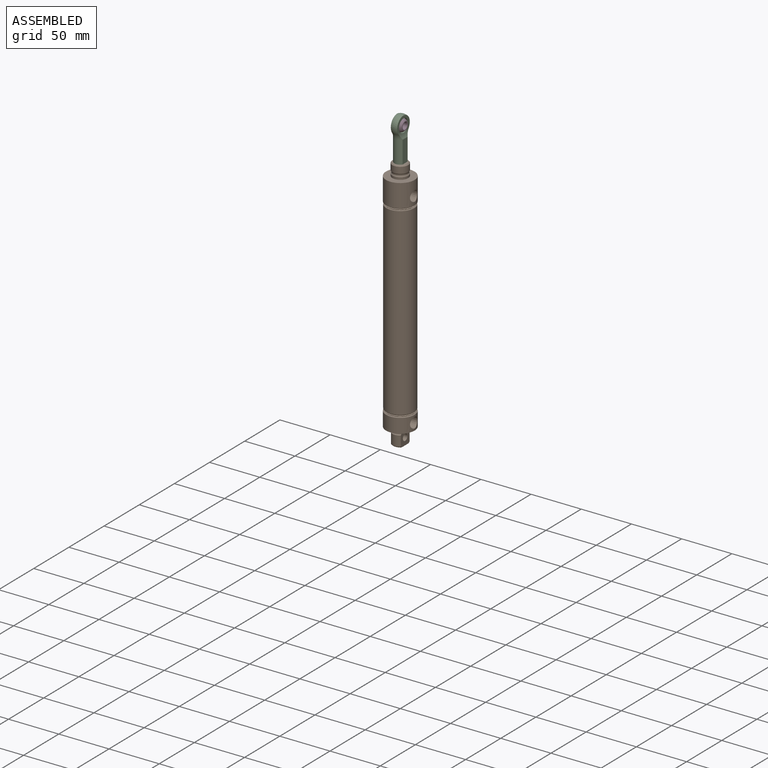
[diagram: assembled view]
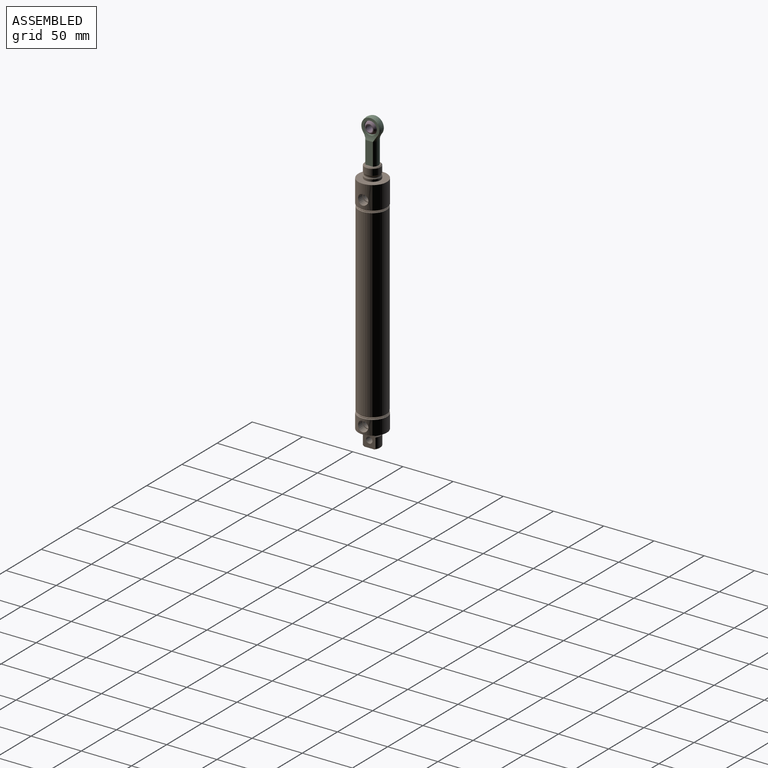
[diagram: assembled view, second angle]
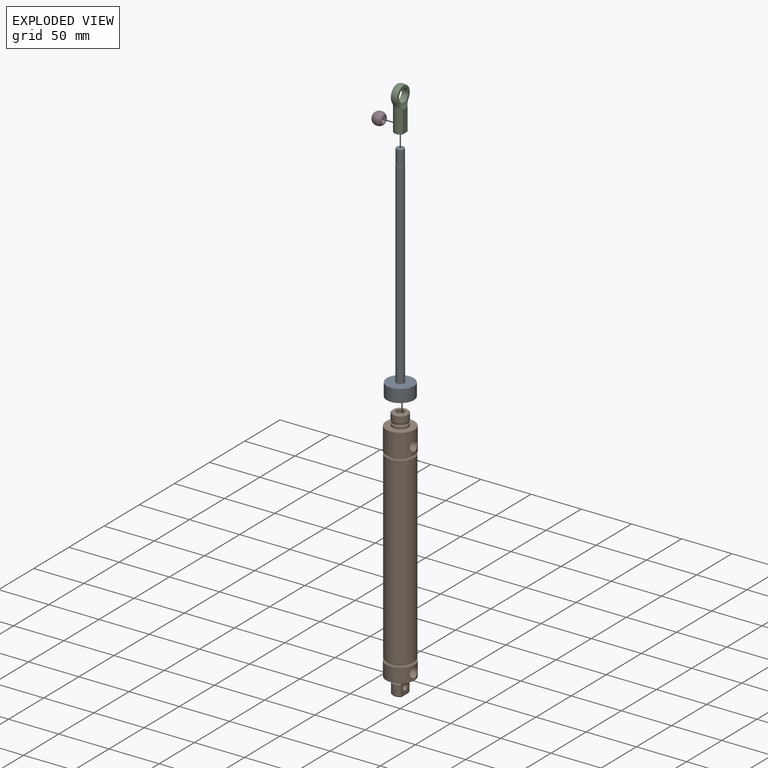
[diagram: exploded view]
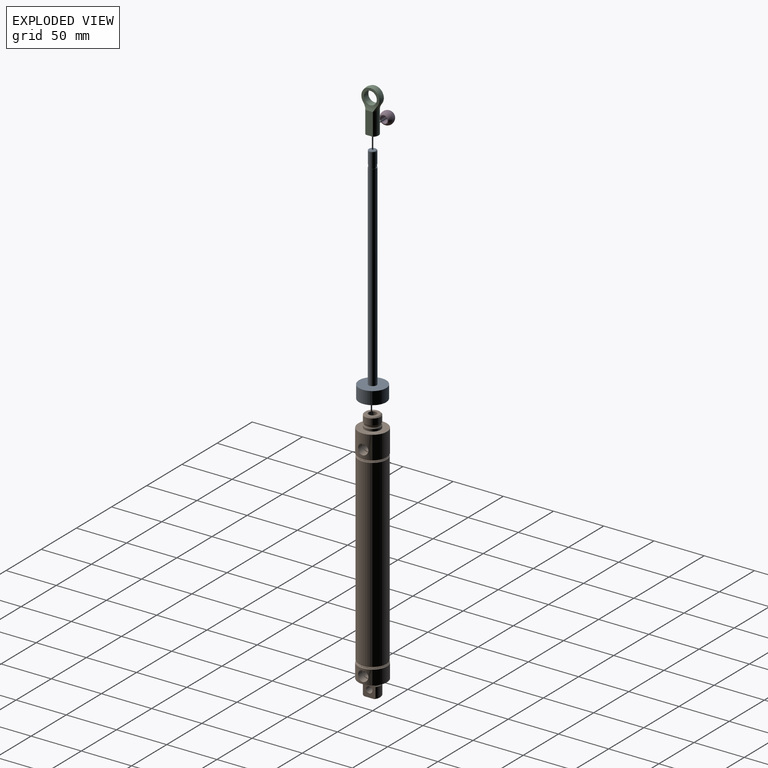
[diagram: exploded view, second angle]
ASSEMBLY  parts=4 mates=2
PART A: 12 faces, bbox 223.8x27x27 mm
  f0: cone r=3.33mm half-angle=45deg, axis (1,0,0), area 17.1mm2, adj f1,f7
  f1: cylinder r=3.86mm len=15.21mm, axis (1,0,0), area 340.7mm2, adj f0,f6,f8,f9,f10,f11
  f2: cylinder r=13.49mm len=26.99mm, axis (1,0,0), area 1076.8mm2, adj f4,f5
  f3: cylinder r=3.96mm len=195.33mm, axis (-1,0,0), area 4862.9mm2, adj f4,f6
  f4: plane 26.99x26.99mm, normal (-1,0,0), area 522.7mm2, adj f2,f3
  f5: plane 26.99x26.99mm, normal (1,0,0), area 572mm2, adj f2
  f6: plane 7.92x7.92mm, normal (-1,0,0), area 6.6mm2, adj f1,f3,f9,f11
  f7: plane 6.65x6.65mm, normal (-1,0,0), area 34.8mm2, adj f0
  f8: plane 4.15x1.6mm, normal (1,0,0), area 2.1mm2, adj f1,f9
  f9: plane 4.15x3.05mm, normal (0,0.94,-0.33), area 13.4mm2, adj f1,f6,f8
  f10: plane 4.15x1.6mm, normal (1,0,0), area 2.1mm2, adj f1,f11
  f11: plane 4.15x3.05mm, normal (0,-0.94,0.33), area 13.4mm2, adj f1,f6,f10
PART B: 45 faces, bbox 254.2x28.7x28.7 mm
  f0: torus R=8.47mm, axis (-1,0,0), area 29.4mm2, adj f1,f42,f43,f44
  f1: plane 15.97x12.83mm, normal (0,0,1), area 162.2mm2, adj f0,f2,f3,f4,f5,f38,f39,f40
  f2: cylinder r=3.17mm len=9.65mm, axis (0,0,1), area 192.5mm2, adj f1,f43
  f3: torus R=8.47mm, axis (-1,0,0), area 29.4mm2, adj f1,f4,f41,f43
  f4: cylinder r=7.91mm len=9.65mm, axis (-1,0,0), area 23.7mm2, adj f1,f3,f5,f43
  f5: plane 28.45x28.45mm, normal (1,0,0), area 493.1mm2, adj f1,f4,f6,f43,f44
  f6: cylinder r=14.22mm len=28.45mm, axis (-1,0,0), area 1187.1mm2, adj f5,f7,f11
  f7: cone r=5.14mm half-angle=1.7deg, axis (0,0,1), area 219.4mm2, adj f6,f8
  f8: plane 9.87x9.87mm, normal (0,0,1), area 20.7mm2, adj f7,f9
  f9: cylinder r=4.22mm len=8.43mm, axis (0,0,1), area 124.5mm2, adj f8,f10
  f10: cone r=4.22mm half-angle=59deg, axis (0,0,1), area 65.2mm2, adj f9
  f11: plane 28.45x28.45mm, normal (-1,0,0), area 22.5mm2, adj f6,f12
  f12: cone r=13.97mm half-angle=45deg, axis (1,0,0), area 81.5mm2, adj f11,f13
  f13: cone r=13.3mm half-angle=45deg, axis (-1,0,0), area 72.1mm2, adj f12,f14
  f14: cone r=13.89mm half-angle=45deg, axis (1,0,0), area 72.1mm2, adj f13,f15
  f15: cone r=13.3mm half-angle=45deg, axis (-1,0,0), area 81.5mm2, adj f14,f16
  f16: cylinder r=13.97mm len=183.39mm, axis (-1,0,0), area 16097.1mm2, adj f15,f17
  f17: cone r=13.3mm half-angle=45deg, axis (1,0,0), area 81.5mm2, adj f16,f18
  f18: cone r=13.89mm half-angle=45deg, axis (-1,0,0), area 72.1mm2, adj f17,f19
  f19: cone r=13.3mm half-angle=45deg, axis (1,0,0), area 72.1mm2, adj f18,f20
  f20: cone r=13.97mm half-angle=45deg, axis (-1,0,0), area 81.5mm2, adj f19,f21
  f21: plane 28.45x28.45mm, normal (1,0,0), area 22.5mm2, adj f20,f22
  f22: cylinder r=14.22mm len=28.45mm, axis (-1,0,0), area 1958.9mm2, adj f21,f23,f37
  f23: cone r=5.14mm half-angle=1.7deg, axis (0,0,1), area 219.4mm2, adj f22,f24
  f24: plane 9.87x9.87mm, normal (0,0,1), area 20.7mm2, adj f23,f25
  f25: cylinder r=4.22mm len=8.43mm, axis (0,0,1), area 115.4mm2, adj f24,f26,f27,f28
  f26: cone r=4.22mm half-angle=59deg, axis (0,0,1), area 0mm2, adj f25,f28
  f27: cone r=4.22mm half-angle=59deg, axis (0,0,1), area 0mm2, adj f25,f28
  f28: cylinder r=3.96mm len=42.93mm, axis (1,0,0), area 1015mm2, adj f25,f26,f27,f29,f34
  f29: plane 13.84x13.84mm, normal (-1,0,0), area 101.2mm2, adj f28,f30
  f30: cone r=6.92mm half-angle=45deg, axis (1,0,0), area 67.1mm2, adj f29,f31
  f31: cylinder r=7.94mm len=15.88mm, axis (-1,0,0), area 316.7mm2, adj f30,f32
  f32: torus R=9.27mm, axis (-1,0,0), area 161.7mm2, adj f31,f33
  f33: cylinder r=7.91mm len=15.81mm, axis (-1,0,0), area 113.6mm2, adj f32,f37
  f34: plane 26.99x26.99mm, normal (1,0,0), area 522.7mm2, adj f28,f35
  f35: cylinder r=13.49mm len=165.1mm, axis (1,0,0), area 13997.8mm2, adj f34,f36
  f36: plane 26.99x26.99mm, normal (-1,0,0), area 572mm2, adj f35
  f37: plane 28.45x28.45mm, normal (-1,0,0), area 439.3mm2, adj f22,f33
  f38: cone r=7.94mm half-angle=45deg, axis (-1,0,0), area 15.2mm2, adj f1,f39,f42,f43
  f39: plane 13.84x9.65mm, normal (1,0,0), area 121.8mm2, adj f1,f38,f40,f43
  f40: cone r=7.94mm half-angle=45deg, axis (-1,0,0), area 15.2mm2, adj f1,f39,f41,f43
  f41: cylinder r=7.94mm len=10.16mm, axis (-1,0,0), area 105.4mm2, adj f1,f3,f40,f43
  f42: cylinder r=7.94mm len=10.16mm, axis (-1,0,0), area 105.4mm2, adj f0,f1,f38,f43
  f43: plane 15.97x12.83mm, normal (0,0,-1), area 162.2mm2, adj f0,f2,f3,f4,f5,f38,f39,f40
  f44: cylinder r=7.91mm len=9.65mm, axis (-1,0,0), area 23.7mm2, adj f0,f1,f5,f43
PART C: 19 faces, bbox 19.4x43.2x15.5 mm
  f0: cylinder r=6.41mm len=12.83mm, axis (0,0,1), area 255.9mm2, adj f15,f16,f17,f18
  f1: sphere r=9.53mm, area 271.3mm2, adj f2,f6,f15,f16,f17,f18
  f2: torus R=15.47mm, axis (0,-1,0), area 52.1mm2, adj f1,f8,f17,f18
  f3: cylinder r=3.17mm len=17.01mm, axis (0,-1,0), area 42.4mm2, adj f4,f9,f10,f12
  f4: cone r=3.63mm half-angle=45deg, axis (0,-1,0), area 21.4mm2, adj f3,f7,f10,f11,f12
  f5: cylinder r=5.94mm len=22.22mm, axis (0,1,0), area 245.5mm2, adj f6,f7,f13,f14
  f6: torus R=15.47mm, axis (0,-1,0), area 52.1mm2, adj f1,f5,f17,f18
  f7: plane 11.89x9.53mm, normal (0,-1,0), area 58.2mm2, adj f4,f5,f8,f13,f14
  f8: cylinder r=5.94mm len=22.22mm, axis (0,1,0), area 245.5mm2, adj f2,f7,f13,f14
  f9: plane 6.16x6.13mm, normal (0,-1,0), area 26.2mm2, adj f3,f10,f11,f12
  f10: bspline ~17.35x6.35mm, area 227.2mm2, adj f3,f4,f9,f11
  f11: cylinder r=2.59mm len=16.42mm, axis (0,1,0), area 33.2mm2, adj f4,f9,f10,f12
  f12: bspline ~17.91x6.35mm, area 226.8mm2, adj f3,f4,f9,f11
  f13: plane 22.22x7.11mm, normal (0,0,1), area 158mm2, adj f5,f7,f8,f17
  f14: plane 22.22x7.11mm, normal (0,0,-1), area 158mm2, adj f5,f7,f8,f18
  f15: plane 17.96x13mm, normal (0,0,1), area 83.8mm2, adj f0,f1,f17
  f16: plane 17.96x13mm, normal (0,0,-1), area 83.8mm2, adj f0,f1,f18
  f17: cylinder r=16.67mm len=16.06mm, axis (-1,0,0), area 67.8mm2, adj f0,f1,f2,f6,f13,f15
  f18: cylinder r=16.67mm len=16.06mm, axis (1,0,0), area 67.8mm2, adj f0,f1,f2,f6,f14,f16
PART D: 6 faces, bbox 12.7x12.7x9.5 mm
  f0: cone r=3.49mm half-angle=45deg, axis (0,0,1), area 9.4mm2, adj f2,f4
  f1: cone r=3.49mm half-angle=45deg, axis (0,0,-1), area 9.4mm2, adj f2,f5
  f2: cylinder r=3.17mm len=8.89mm, axis (0,0,1), area 177.3mm2, adj f0,f1
  f3: sphere r=6.35mm, area 380mm2, adj f4,f5
  f4: plane 8.4x8.4mm, normal (0,0,1), area 17.1mm2, adj f0,f3
  f5: plane 8.4x8.4mm, normal (0,0,-1), area 17.1mm2, adj f1,f3
PLACE A rot(axis=(0,1,0),90deg) t=(0,0,681.28)mm
PLACE B rot(axis=(0,1,0),90deg) t=(0,0,0)mm fixed
PLACE C rot(axis=(0.58,-0.58,-0.58),120deg) t=(0,0,14.41)mm
PLACE D rot(axis=(0.58,-0.58,-0.58),120deg) t=(0,0,14.41)mm
MATE slider B.f0 <-> A.f0  axis (0,0,1) through (0,0,-3.05)mm
MATE fastened C.f2 <-> A.f0  axis (0,0,-1) through (0,0,-3.05)mm
